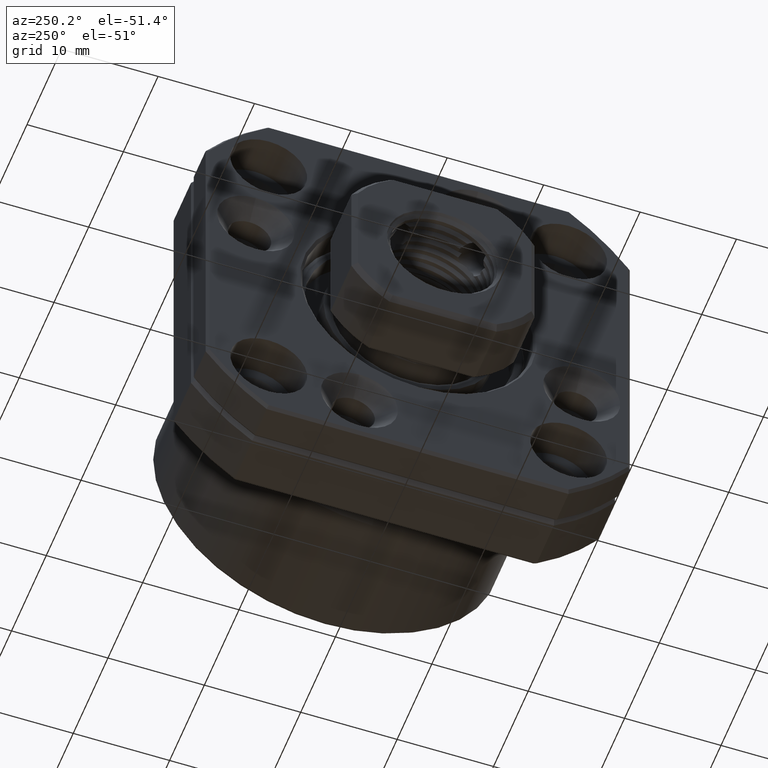
[diagram: clean part render]
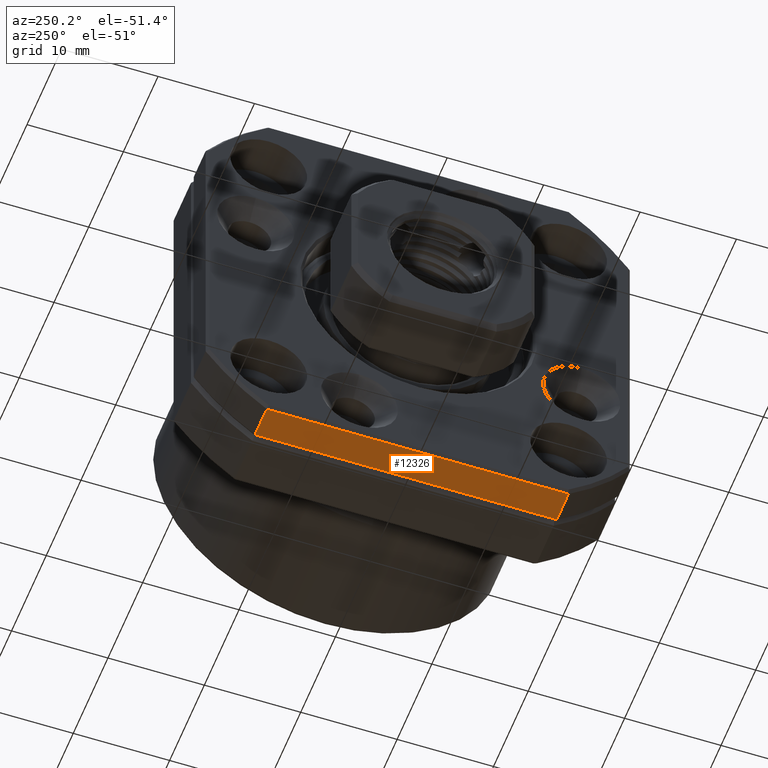
[diagram: same view with one face highlighted and labeled with its STEP entity id]
A machine part, auxiliary view. The second image highlights one B-rep face of the part: STEP entity #12326.
In plain terms, the highlighted planar face has unit normal (0, 0, -1).
Its self-contained STEP definition (entity closure, byte-faithful):
#5856 = CARTESIAN_POINT ( 'NONE',  ( -3.699999999999994800, 15.65247584249851800, -22.00000000000000700 ) ) ;
#5890 = CARTESIAN_POINT ( 'NONE',  ( -3.699999999999994800, -15.65247584249851800, -22.00000000000000700 ) ) ;
#5891 = CARTESIAN_POINT ( 'NONE',  ( -0.3000000000000016500, -15.65247584249851800, -22.00000000000000700 ) ) ;
#5892 = DIRECTION ( 'NONE',  ( -1.000000000000000000, 0.0000000000000000000, 0.0000000000000000000 ) ) ;
#5893 = VECTOR ( 'NONE', #5892, 1000.000000000000000 ) ;
#5894 = CARTESIAN_POINT ( 'NONE',  ( -46.83312411036066400, -15.65247584249851800, -22.00000000000000700 ) ) ;
#5895 = LINE ( 'NONE', #5894, #5893 ) ;
#6068 = DIRECTION ( 'NONE',  ( 1.000000000000000000, -0.0000000000000000000, -0.0000000000000000000 ) ) ;
#6069 = VECTOR ( 'NONE', #6068, 1000.000000000000000 ) ;
#6070 = CARTESIAN_POINT ( 'NONE',  ( -46.83312411036066400, 15.65247584249851800, -22.00000000000000700 ) ) ;
#6071 = LINE ( 'NONE', #6070, #6069 ) ;
#6072 = CARTESIAN_POINT ( 'NONE',  ( -0.3000000000000016500, 15.65247584249851800, -22.00000000000000700 ) ) ;
#6122 = DIRECTION ( 'NONE',  ( 0.0000000000000000000, 1.000000000000000000, 0.0000000000000000000 ) ) ;
#6123 = VECTOR ( 'NONE', #6122, 1000.000000000000000 ) ;
#6124 = CARTESIAN_POINT ( 'NONE',  ( -3.699999999999994800, 15.65247584249852200, -22.00000000000000700 ) ) ;
#6125 = LINE ( 'NONE', #6124, #6123 ) ;
#6126 = DIRECTION ( 'NONE',  ( 0.0000000000000000000, -1.000000000000000000, 0.0000000000000000000 ) ) ;
#6127 = VECTOR ( 'NONE', #6126, 1000.000000000000000 ) ;
#6128 = CARTESIAN_POINT ( 'NONE',  ( -0.2999999999999990500, -15.65247584249851800, -22.00000000000000700 ) ) ;
#6129 = LINE ( 'NONE', #6128, #6127 ) ;
#6151 = DIRECTION ( 'NONE',  ( -1.000000000000000000, 0.0000000000000000000, 0.0000000000000000000 ) ) ;
#6152 = DIRECTION ( 'NONE',  ( 0.0000000000000000000, 0.0000000000000000000, -1.000000000000000000 ) ) ;
#6153 = CARTESIAN_POINT ( 'NONE',  ( 2.000000000000003600, -22.00000000000000000, -22.00000000000000700 ) ) ;
#6154 = AXIS2_PLACEMENT_3D ( 'NONE', #6153, #6152, #6151 ) ;
#6155 = PLANE ( 'NONE',  #6154 ) ;
#6157 = FACE_OUTER_BOUND ( 'NONE', #12327, .T. ) ;
#12174 = VERTEX_POINT ( 'NONE', #5856 ) ;
#12183 = EDGE_CURVE ( 'NONE', #12184, #12185, #5895, .T. ) ;
#12184 = VERTEX_POINT ( 'NONE', #5891 ) ;
#12185 = VERTEX_POINT ( 'NONE', #5890 ) ;
#12259 = VERTEX_POINT ( 'NONE', #6072 ) ;
#12261 = EDGE_CURVE ( 'NONE', #12174, #12259, #6071, .T. ) ;
#12304 = ORIENTED_EDGE ( 'NONE', *, *, #12305, .T. ) ;
#12305 = EDGE_CURVE ( 'NONE', #12259, #12184, #6129, .T. ) ;
#12306 = ORIENTED_EDGE ( 'NONE', *, *, #12183, .T. ) ;
#12307 = ORIENTED_EDGE ( 'NONE', *, *, #12308, .T. ) ;
#12308 = EDGE_CURVE ( 'NONE', #12185, #12174, #6125, .T. ) ;
#12326 = ADVANCED_FACE ( 'NONE', ( #6157 ), #6155, .T. ) ;
#12327 = EDGE_LOOP ( 'NONE', ( #12328, #12304, #12306, #12307 ) ) ;
#12328 = ORIENTED_EDGE ( 'NONE', *, *, #12261, .T. ) ;